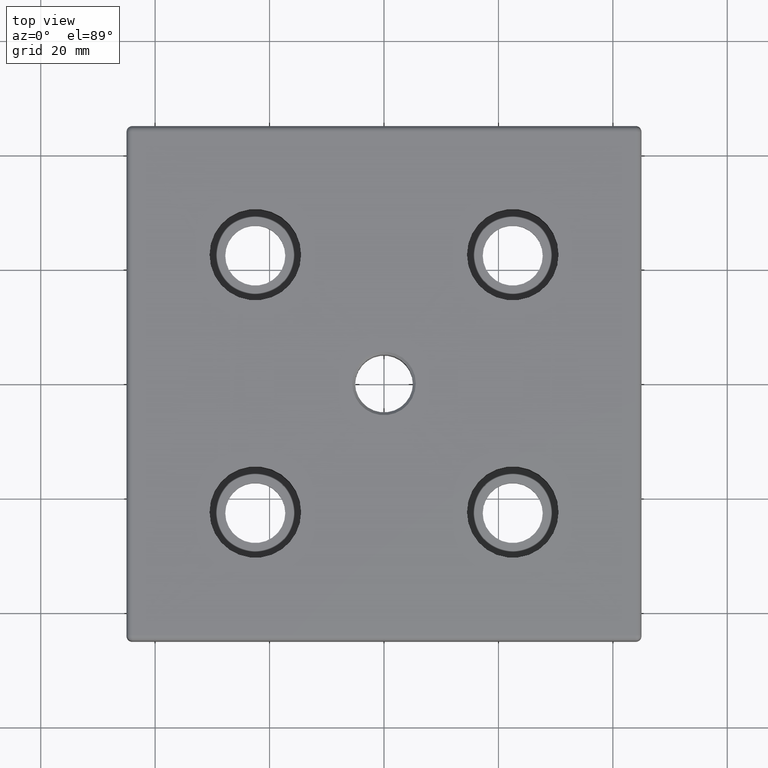
[diagram: clean part render]
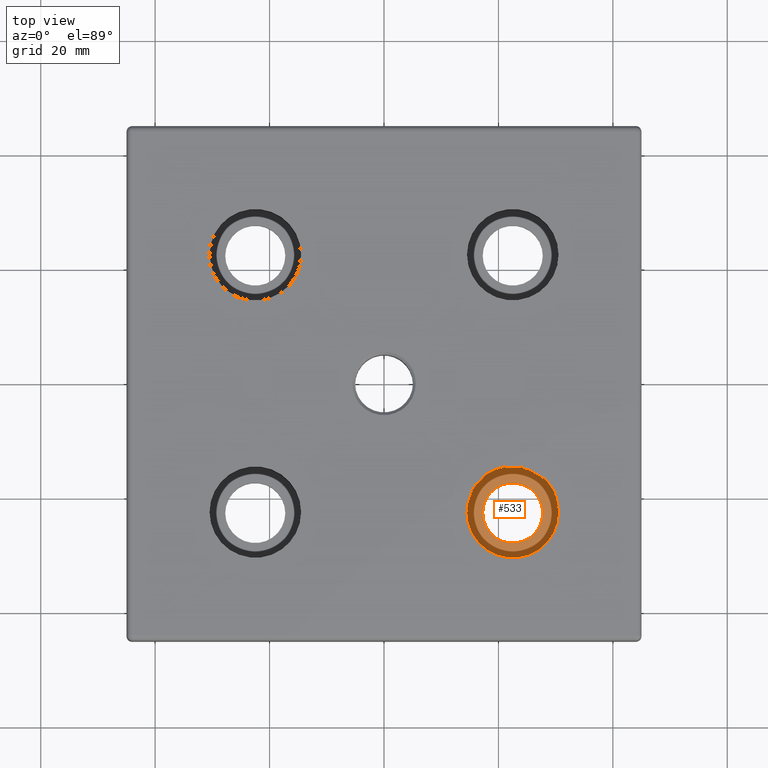
[diagram: same view with one face highlighted and labeled with its STEP entity id]
A machine part, top view. The second image highlights one B-rep face of the part: STEP entity #533.
In plain terms, the highlighted planar face has unit normal (0, 0, 1).
Its self-contained STEP definition (entity closure, byte-faithful):
#73=PLANE('',#588);
#115=FACE_BOUND('',#187,.T.);
#132=FACE_OUTER_BOUND('',#186,.T.);
#186=EDGE_LOOP('',(#414));
#187=EDGE_LOOP('',(#415));
#246=CIRCLE('',#589,8.);
#247=CIRCLE('',#590,5.25);
#298=VERTEX_POINT('',#899);
#299=VERTEX_POINT('',#901);
#342=EDGE_CURVE('',#298,#298,#246,.T.);
#343=EDGE_CURVE('',#299,#299,#247,.T.);
#414=ORIENTED_EDGE('',*,*,#342,.T.);
#415=ORIENTED_EDGE('',*,*,#343,.F.);
#533=ADVANCED_FACE('',(#132,#115),#73,.T.);
#588=AXIS2_PLACEMENT_3D('',#898,#700,#701);
#589=AXIS2_PLACEMENT_3D('',#900,#702,#703);
#590=AXIS2_PLACEMENT_3D('',#902,#704,#705);
#700=DIRECTION('center_axis',(0.,0.,1.));
#701=DIRECTION('ref_axis',(1.,0.,0.));
#702=DIRECTION('center_axis',(0.,0.,1.));
#703=DIRECTION('ref_axis',(1.,0.,0.));
#704=DIRECTION('center_axis',(0.,0.,1.));
#705=DIRECTION('ref_axis',(1.,0.,0.));
#898=CARTESIAN_POINT('Origin',(22.5,-22.5,3.5));
#899=CARTESIAN_POINT('',(30.5,-22.5,3.5));
#900=CARTESIAN_POINT('Origin',(22.5,-22.5,3.5));
#901=CARTESIAN_POINT('',(17.25,-22.5,3.50000000000001));
#902=CARTESIAN_POINT('Origin',(22.5,-22.5,3.50000000000001));